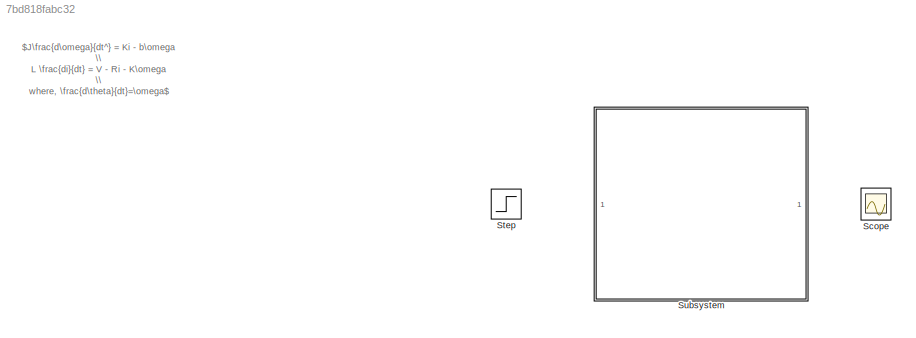
MODEL slx_7bd818fabc32
KIND model
CONFIG AbsTol = auto
CONFIG EnableMultiTasking = off
CONFIG FixedStep = auto
CONFIG MaxStep = auto
CONFIG MinStep = auto
CONFIG RelTol = 1e-3
CONFIG SampleTimeConstraint = Unconstrained
CONFIG SolverName = VariableStepAuto
CONFIG StartTime = 0.0
CONFIG StopTime = 10.0
WORKSPACE source: mxarray member
WORKSPACE J = 0.05
WORKSPACE K = 0.01
WORKSPACE L = 0.5
WORKSPACE R = 1
WORKSPACE b = 0.1
BLOCK [Scope] Scope
  Floating = off
  NumInputPorts = 1
  Ports = [1]
  ScopeSpecificationString = Simulink.scopes.TimeScopeBlockCfg('CurrentConfiguration', extmgr.ConfigurationSet(extmgr.Configuration('Core','General UI',true),extmgr.Configuration('Core','Source UI',true),extmgr.Configuration('Sources','WiredSimulink',true),extmgr.Configuration('Visuals','Time Domain',true,'SerializedDisplays',{struct('MinYLimReal','-1.00000','MaxYLimReal','1.00000','YLabelReal','','MinYLimMag','0.00000','MaxY...<+1393ch>
BLOCK [Step] Step
  SampleTime = 0
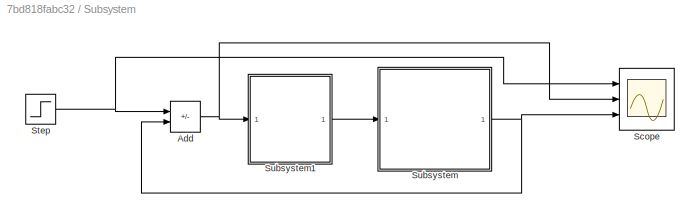
BLOCK [SubSystem] Subsystem
  Ports = []
  RequestExecContextInheritance = off
BLOCK [Sum] Subsystem/Add
  IconShape = rectangular
  Inputs = +-
  Ports = [2, 1]
BLOCK [Scope] Subsystem/Scope
  Floating = off
  NumInputPorts = 3
  Ports = [3]
  ScopeSpecificationString = Simulink.scopes.TimeScopeBlockCfg('CurrentConfiguration', extmgr.ConfigurationSet(extmgr.Configuration('Core','General UI',true),extmgr.Configuration('Core','Source UI',true),extmgr.Configuration('Sources','WiredSimulink',true,'DataLoggingVariableName','ScopeData1'),extmgr.Configuration('Visuals','Time Domain',true,'SerializedDisplays',{struct('MinYLimReal','-0.5','MaxYLimReal','4.5','YLabelReal',...<+2721ch>
BLOCK [Step] Subsystem/Step
  After = 4
  SampleTime = 0
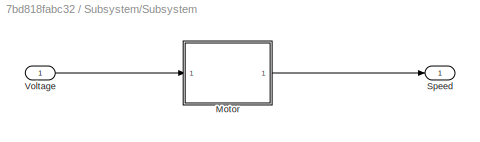
BLOCK [SubSystem] Subsystem/Subsystem
  Ports = [1, 1]
  RequestExecContextInheritance = off
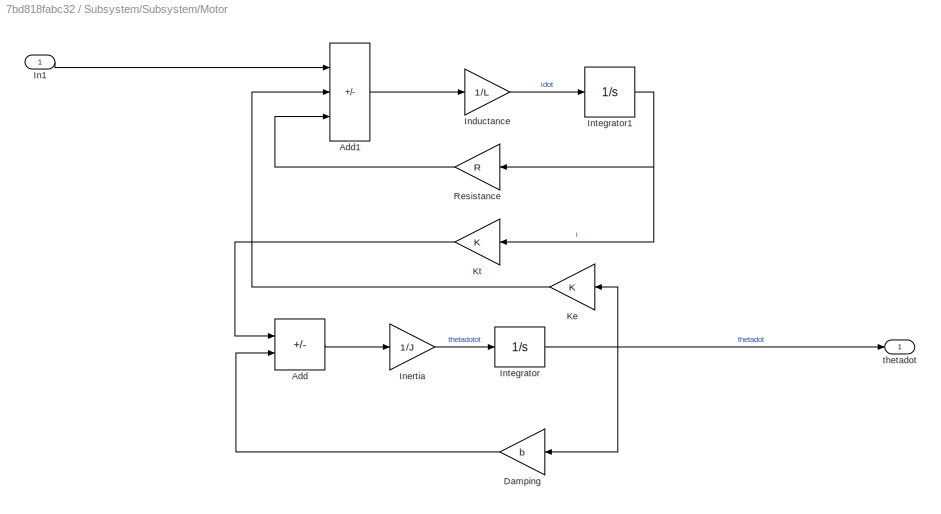
BLOCK [SubSystem] Subsystem/Subsystem/Motor
  Ports = [1, 1]
  RequestExecContextInheritance = off
BLOCK [Sum] Subsystem/Subsystem/Motor/Add
  IconShape = rectangular
  Inputs = +-
  Ports = [2, 1]
BLOCK [Sum] Subsystem/Subsystem/Motor/Add1
  IconShape = rectangular
  Inputs = +--
  Ports = [3, 1]
BLOCK [Gain] Subsystem/Subsystem/Motor/Damping
  Gain = b
BLOCK [Inport] Subsystem/Subsystem/Motor/In1
BLOCK [Gain] Subsystem/Subsystem/Motor/Inductance
  Gain = 1/L
BLOCK [Gain] Subsystem/Subsystem/Motor/Inertia
  Gain = 1/J
BLOCK [Integrator] Subsystem/Subsystem/Motor/Integrator
  Ports = [1, 1]
BLOCK [Integrator] Subsystem/Subsystem/Motor/Integrator1
  Ports = [1, 1]
BLOCK [Gain] Subsystem/Subsystem/Motor/Ke
  Gain = K
BLOCK [Gain] Subsystem/Subsystem/Motor/Kt
  Gain = K
BLOCK [Gain] Subsystem/Subsystem/Motor/Resistance
  Gain = R
BLOCK [Outport] Subsystem/Subsystem/Motor/thetadot
BLOCK [Outport] Subsystem/Subsystem/Speed
BLOCK [Inport] Subsystem/Subsystem/Voltage
BLOCK [ModelReference] Subsystem/Subsystem1
  ModelNameDialog = Subsystem1
  ModelReferenceVersion = 1.5
  Ports = [1, 1]
ANNOTATION (root): $J\frac{d\omega}{dt^} = Ki - b\omega \\ L \frac{di}{dt} = V - Ri - K\omega \\ where, \frac{d\theta}{dt}=\omega$
NET Subsystem/Add:1 -> Subsystem/Scope:2, Subsystem/Subsystem1:1
NET Subsystem/Step:1 -> Subsystem/Add:1, Subsystem/Scope:1
LINE Subsystem/Subsystem/Motor/Add1:1 -> Subsystem/Subsystem/Motor/Inductance:1
LINE Subsystem/Subsystem/Motor/Add:1 -> Subsystem/Subsystem/Motor/Inertia:1
LINE Subsystem/Subsystem/Motor/Damping:1 -> Subsystem/Subsystem/Motor/Add:2
LINE Subsystem/Subsystem/Motor/In1:1 -> Subsystem/Subsystem/Motor/Add1:1
LINE Subsystem/Subsystem/Motor/Inductance:1 -> Subsystem/Subsystem/Motor/Integrator1:1
LINE Subsystem/Subsystem/Motor/Inertia:1 -> Subsystem/Subsystem/Motor/Integrator:1
NET Subsystem/Subsystem/Motor/Integrator1:1 -> Subsystem/Subsystem/Motor/Kt:1, Subsystem/Subsystem/Motor/Resistance:1
NET Subsystem/Subsystem/Motor/Integrator:1 -> Subsystem/Subsystem/Motor/Damping:1, Subsystem/Subsystem/Motor/Ke:1, Subsystem/Subsystem/Motor/thetadot:1
LINE Subsystem/Subsystem/Motor/Ke:1 -> Subsystem/Subsystem/Motor/Add1:2
LINE Subsystem/Subsystem/Motor/Kt:1 -> Subsystem/Subsystem/Motor/Add:1
LINE Subsystem/Subsystem/Motor/Resistance:1 -> Subsystem/Subsystem/Motor/Add1:3
LINE Subsystem/Subsystem/Motor:1 -> Subsystem/Subsystem/Speed:1
LINE Subsystem/Subsystem/Voltage:1 -> Subsystem/Subsystem/Motor:1
LINE Subsystem/Subsystem1:1 -> Subsystem/Subsystem:1
NET Subsystem/Subsystem:1 -> Subsystem/Add:2, Subsystem/Scope:3
note: NET lines group one-source signal fan-out (src -> all destinations, sorted); 1:1 wires keep LINE
